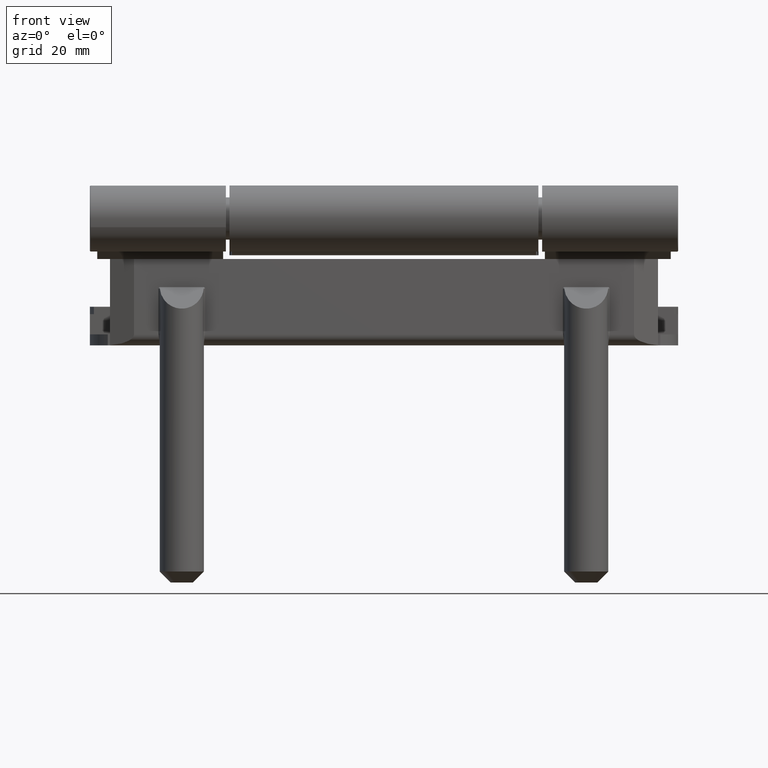
[diagram: clean part render]
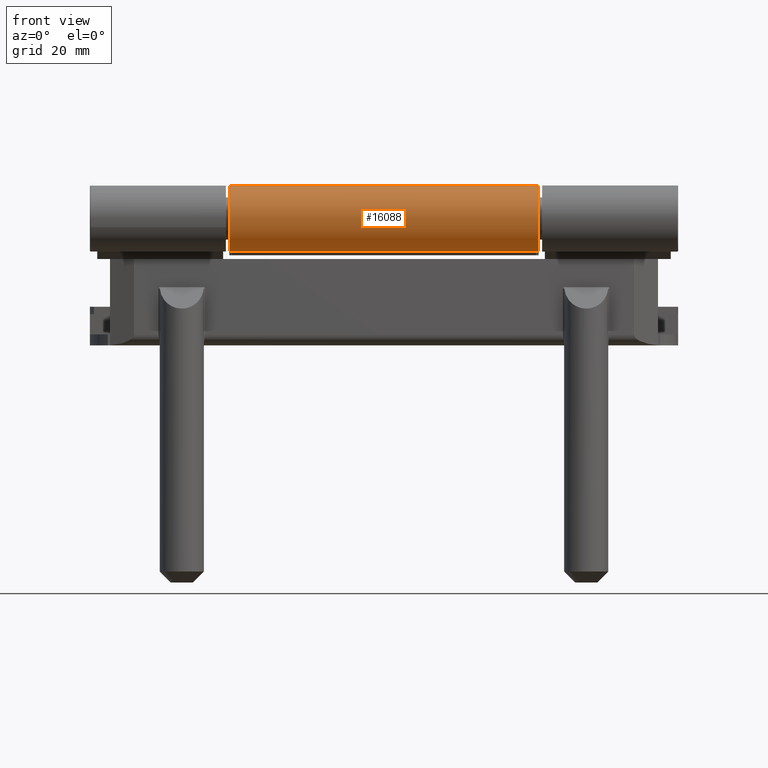
[diagram: same view with one face highlighted and labeled with its STEP entity id]
A machine part, front view. The second image highlights one B-rep face of the part: STEP entity #16088.
In plain terms, the highlighted cylindrical surface (edge-blend (fillet) strip) has radius 9 mm, axis along (1, -0, -0).
Its self-contained STEP definition (entity closure, byte-faithful):
#12 = DIRECTION ( 'NONE',  ( 1.000000000000000000, -4.685430270105894979E-30, -2.588449845256444987E-31 ) ) ;
#2388 = ORIENTED_EDGE ( 'NONE', *, *, #53070, .T. ) ;
#3903 = FACE_OUTER_BOUND ( 'NONE', #36972, .T. ) ;
#6458 = LINE ( 'NONE', #27304, #38807 ) ;
#8420 = CARTESIAN_POINT ( 'NONE',  ( 54.99999999999999289, 8.673617379884026597E-16, -8.999999999999994671 ) ) ;
#11903 = VERTEX_POINT ( 'NONE', #41614 ) ;
#12295 = LINE ( 'NONE', #8420, #16890 ) ;
#12576 = CIRCLE ( 'NONE', #25976, 8.999999999999996447 ) ;
#12784 = EDGE_CURVE ( 'NONE', #11903, #53199, #12295, .T. ) ;
#16088 = ADVANCED_FACE ( 'NONE', ( #3903 ), #38059, .T. ) ;
#16564 = VERTEX_POINT ( 'NONE', #31018 ) ;
#16890 = VECTOR ( 'NONE', #50361, 1000.000000000000000 ) ;
#18648 = CIRCLE ( 'NONE', #20440, 8.999999999999996447 ) ;
#20152 = VERTEX_POINT ( 'NONE', #38511 ) ;
#20440 = AXIS2_PLACEMENT_3D ( 'NONE', #34147, #49800, #45362 ) ;
#24282 = DIRECTION ( 'NONE',  ( 1.000000000000000000, -4.685430270105894979E-30, -2.588449845256444987E-31 ) ) ;
#25114 = CARTESIAN_POINT ( 'NONE',  ( -42.00000000000000000, 0.000000000000000000, -6.938893903907228378E-15 ) ) ;
#25577 = DIRECTION ( 'NONE',  ( 0.000000000000000000, -9.629649721936182550E-32, -1.000000000000000000 ) ) ;
#25976 = AXIS2_PLACEMENT_3D ( 'NONE', #25114, #24282, #33966 ) ;
#27304 = CARTESIAN_POINT ( 'NONE',  ( 54.99999999999999289, 1.969543857221022247E-15, 8.999999999999998224 ) ) ;
#28943 = ORIENTED_EDGE ( 'NONE', *, *, #51082, .F. ) ;
#29996 = CARTESIAN_POINT ( 'NONE',  ( 54.99999999999999289, 8.673617379884035472E-16, 1.734723475976807094E-15 ) ) ;
#31018 = CARTESIAN_POINT ( 'NONE',  ( -42.00000000000000000, 1.969543857221279416E-15, 8.999999999999992895 ) ) ;
#32915 = ORIENTED_EDGE ( 'NONE', *, *, #45631, .T. ) ;
#33966 = DIRECTION ( 'NONE',  ( 0.000000000000000000, -9.860761315262651947E-32, -1.000000000000000000 ) ) ;
#34147 = CARTESIAN_POINT ( 'NONE',  ( 42.00000000000000711, 8.673617379884035472E-16, 1.734723475976807094E-15 ) ) ;
#36972 = EDGE_LOOP ( 'NONE', ( #2388, #32915, #28943, #45819 ) ) ;
#38059 = CYLINDRICAL_SURFACE ( 'NONE', #49268, 8.999999999999996447 ) ;
#38511 = CARTESIAN_POINT ( 'NONE',  ( 42.00000000000000711, 1.969543857221280205E-15, 9.000000000000001776 ) ) ;
#38807 = VECTOR ( 'NONE', #43959, 1000.000000000000000 ) ;
#39227 = CARTESIAN_POINT ( 'NONE',  ( 42.00000000000000711, 8.673617379884026597E-16, -8.999999999999994671 ) ) ;
#41614 = CARTESIAN_POINT ( 'NONE',  ( -42.00000000000000000, -8.874685183736382811E-31, -9.000000000000003553 ) ) ;
#43959 = DIRECTION ( 'NONE',  ( 1.000000000000000000, -4.685430270105894979E-30, -2.588449845256444987E-31 ) ) ;
#45362 = DIRECTION ( 'NONE',  ( 0.000000000000000000, -9.629649721936182550E-32, -1.000000000000000000 ) ) ;
#45631 = EDGE_CURVE ( 'NONE', #16564, #20152, #6458, .T. ) ;
#45819 = ORIENTED_EDGE ( 'NONE', *, *, #12784, .F. ) ;
#49268 = AXIS2_PLACEMENT_3D ( 'NONE', #29996, #12, #25577 ) ;
#49800 = DIRECTION ( 'NONE',  ( 1.000000000000000000, -4.685430270105894979E-30, -2.588449845256444987E-31 ) ) ;
#50361 = DIRECTION ( 'NONE',  ( 1.000000000000000000, -4.685430270105894979E-30, -2.588449845256444987E-31 ) ) ;
#51082 = EDGE_CURVE ( 'NONE', #53199, #20152, #18648, .T. ) ;
#53070 = EDGE_CURVE ( 'NONE', #11903, #16564, #12576, .T. ) ;
#53199 = VERTEX_POINT ( 'NONE', #39227 ) ;